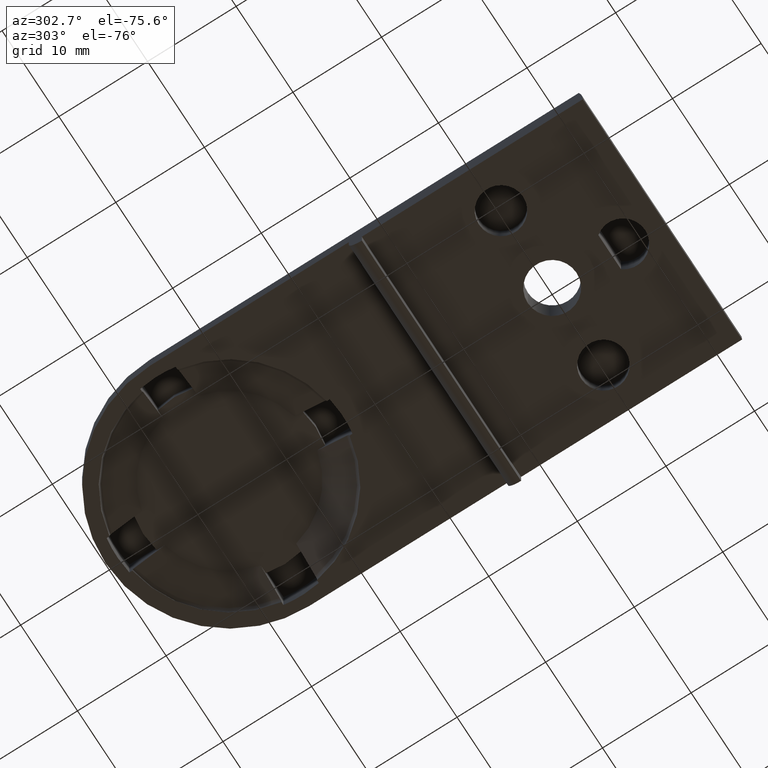
[diagram: clean part render]
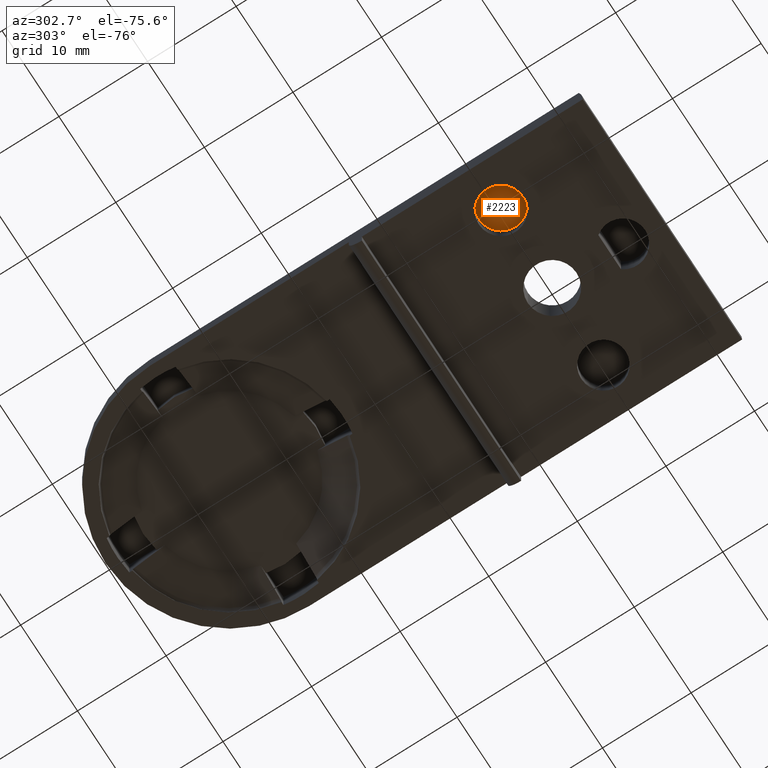
[diagram: same view with one face highlighted and labeled with its STEP entity id]
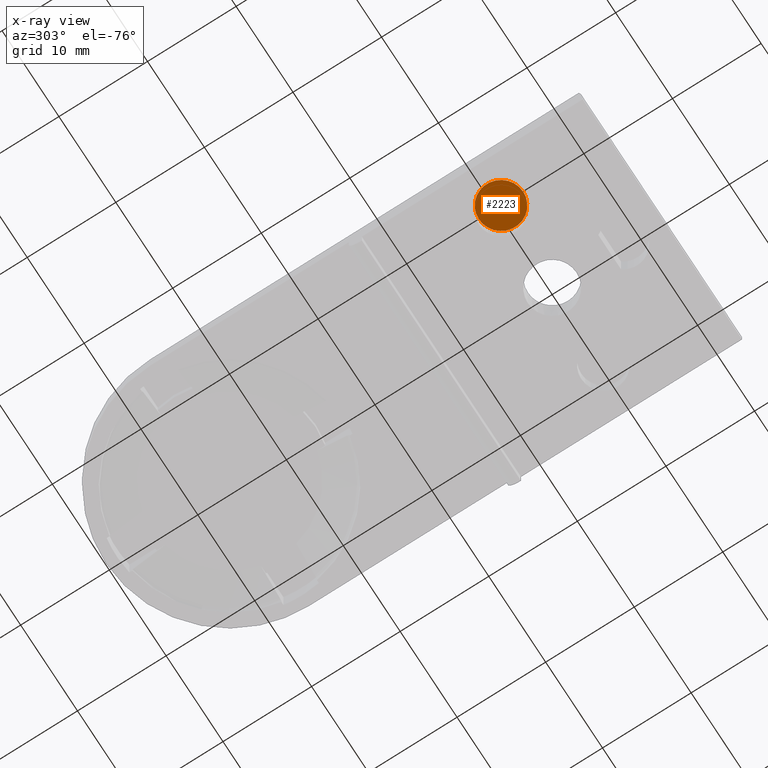
[diagram: x-ray of the same camera — body ghosted, the highlighted face saturated]
A machine part, auxiliary view. The second image highlights one B-rep face of the part: STEP entity #2223.
The next image is the same camera in x-ray: the body ghosted, the highlighted face saturated — about 0% of this face is hidden behind the body in this view.
In plain terms, the highlighted planar face has unit normal (0, 0, -1).
Its self-contained STEP definition (entity closure, byte-faithful):
#2184=CARTESIAN_POINT('',(-9.000000000000910,-2.499999999999659,1.999999999999996));
#2185=VERTEX_POINT('',#2184);
#2186=CARTESIAN_POINT('',(-9.000000000000910,2.500000000000341,1.999999999999996));
#2187=VERTEX_POINT('',#2186);
#2188=CARTESIAN_POINT('',(-9.000000000000910,3.410605E-013,1.999999999999996));
#2189=DIRECTION('',(1.246523E-016,0.0,-1.0));
#2190=DIRECTION('',(0.0,1.0,0.0));
#2191=AXIS2_PLACEMENT_3D('',#2188,#2189,#2190);
#2192=CIRCLE('',#2191,2.500000000000000);
#2193=EDGE_CURVE('',#2185,#2187,#2192,.T.);
#2195=CARTESIAN_POINT('',(-9.000000000000910,3.410605E-013,1.999999999999996));
#2196=DIRECTION('',(1.246523E-016,0.0,-1.0));
#2197=DIRECTION('',(0.0,1.0,0.0));
#2198=AXIS2_PLACEMENT_3D('',#2195,#2196,#2197);
#2199=CIRCLE('',#2198,2.500000000000000);
#2200=EDGE_CURVE('',#2187,#2185,#2199,.T.);
#2214=CARTESIAN_POINT('',(-12.002624200673836,3.002624200667242,1.999999999999996));
#2215=DIRECTION('',(0.0,0.0,-1.0));
#2216=DIRECTION('',(1.0,0.0,0.0));
#2217=AXIS2_PLACEMENT_3D('',#2214,#2215,#2216);
#2218=PLANE('',#2217);
#2219=ORIENTED_EDGE('',*,*,#2200,.T.);
#2220=ORIENTED_EDGE('',*,*,#2193,.T.);
#2221=EDGE_LOOP('',(#2219,#2220));
#2222=FACE_OUTER_BOUND('',#2221,.T.);
#2223=ADVANCED_FACE('',(#2222),#2218,.T.);